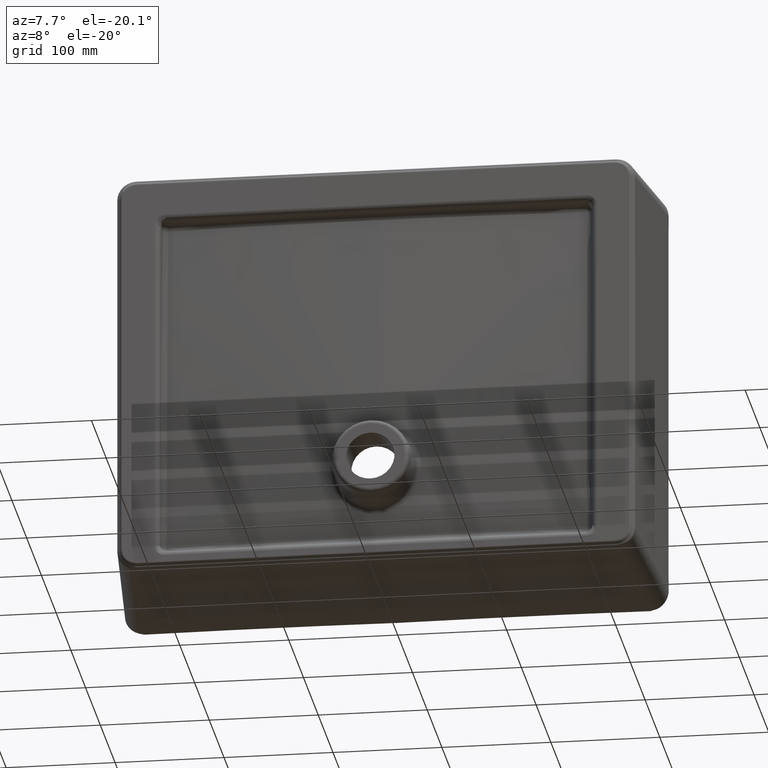
[diagram: clean part render]
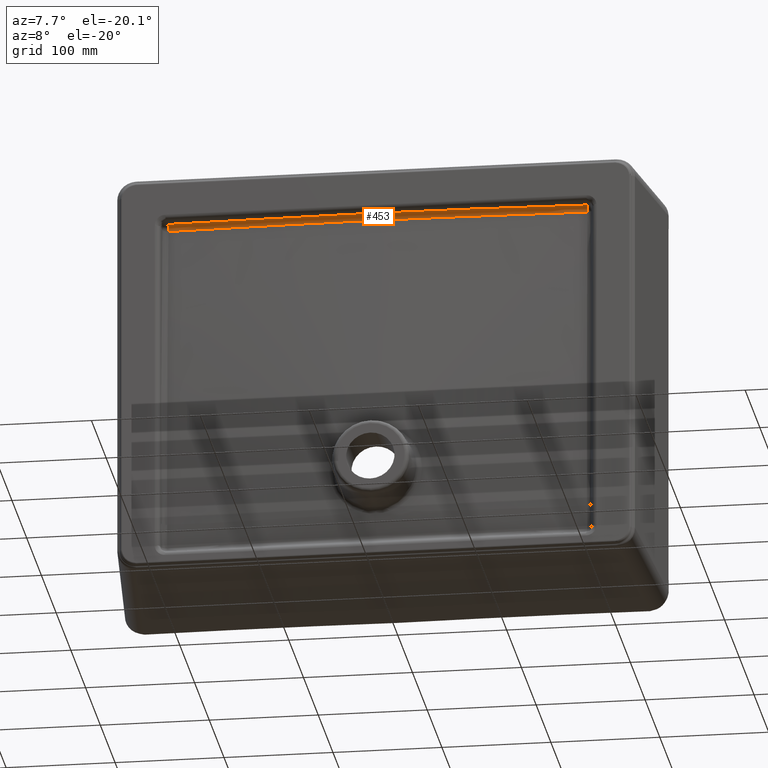
[diagram: same view with one face highlighted and labeled with its STEP entity id]
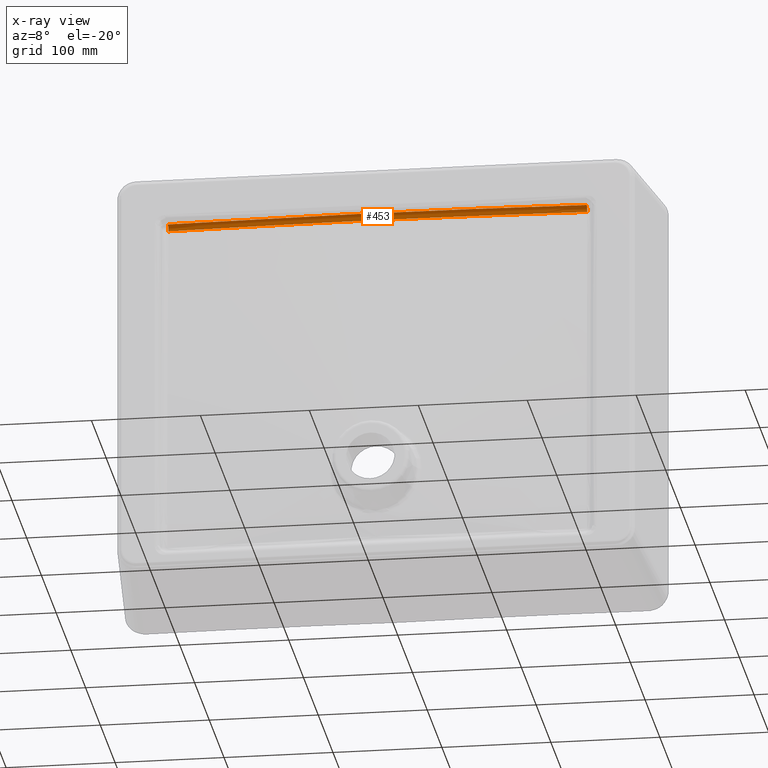
[diagram: x-ray of the same camera — body ghosted, the highlighted face saturated]
A machine part, auxiliary view. The second image highlights one B-rep face of the part: STEP entity #453.
The next image is the same camera in x-ray: the body ghosted, the highlighted face saturated — about 0% of this face is hidden behind the body in this view.
In plain terms, the highlighted face is a freeform B-spline surface patch.
Its self-contained STEP definition (entity closure, byte-faithful):
#149=(
BOUNDED_SURFACE()
B_SPLINE_SURFACE(3,2,((#6556,#6557,#6558),(#6559,#6560,#6561),(#6562,#6563,
#6564),(#6565,#6566,#6567),(#6568,#6569,#6570),(#6571,#6572,#6573)),
 .UNSPECIFIED.,.F.,.F.,.F.)
B_SPLINE_SURFACE_WITH_KNOTS((4,2,4),(3,3),(0.,0.5,1.),(0.,1.),
 .UNSPECIFIED.)
GEOMETRIC_REPRESENTATION_ITEM()
RATIONAL_B_SPLINE_SURFACE(((1.,0.723189178297716,1.),(1.,0.721388105028589,
1.),(1.,0.719339800338789,1.),(1.,0.719339800338789,1.),(1.,0.721388062574021,
1.),(1.,0.723189178297716,1.)))
REPRESENTATION_ITEM('')
SURFACE()
);
#342=CIRCLE('',#2165,5.);
#344=CIRCLE('',#2168,5.);
#453=ADVANCED_FACE('',(#597),#149,.T.);
#597=FACE_OUTER_BOUND('',#744,.T.);
#744=EDGE_LOOP('',(#1385,#1386,#1387,#1388));
#835=B_SPLINE_CURVE_WITH_KNOTS('',3,(#3064,#3065,#3066,#3067,#3068,#3069),
 .UNSPECIFIED.,.F.,.F.,(4,2,4),(0.,0.5,1.),.UNSPECIFIED.);
#857=B_SPLINE_CURVE_WITH_KNOTS('',3,(#3669,#3670,#3671,#3672,#3673,#3674),
 .UNSPECIFIED.,.F.,.F.,(4,2,4),(0.,0.5,1.),.UNSPECIFIED.);
#1385=ORIENTED_EDGE('',*,*,#2011,.T.);
#1386=ORIENTED_EDGE('',*,*,#1865,.F.);
#1387=ORIENTED_EDGE('',*,*,#2014,.F.);
#1388=ORIENTED_EDGE('',*,*,#1830,.F.);
#1654=VERTEX_POINT('',#3070);
#1655=VERTEX_POINT('',#3071);
#1687=VERTEX_POINT('',#3668);
#1688=VERTEX_POINT('',#3675);
#1830=EDGE_CURVE('',#1654,#1655,#835,.T.);
#1865=EDGE_CURVE('',#1687,#1688,#857,.T.);
#2011=EDGE_CURVE('',#1654,#1688,#342,.T.);
#2014=EDGE_CURVE('',#1655,#1687,#344,.T.);
#2165=AXIS2_PLACEMENT_3D('',#6522,#2367,#2368);
#2168=AXIS2_PLACEMENT_3D('',#6555,#2373,#2374);
#2367=DIRECTION('',(0.999477451375304,0.0322007387917334,-0.00281719960143612));
#2368=DIRECTION('',(-0.0322008665749052,0.999481417632075,0.));
#2373=DIRECTION('',(0.999477451375304,-0.0322007387917332,0.00281719960144167));
#2374=DIRECTION('',(0.0322008665749052,0.999481417632075,0.));
#3064=CARTESIAN_POINT('',(192.16031026311,-134.360231407309,342.115818564149));
#3065=CARTESIAN_POINT('',(128.12586089172,-136.424341576142,342.270233090471));
#3066=CARTESIAN_POINT('',(64.0699026513638,-137.824209578635,342.363137149872));
#3067=CARTESIAN_POINT('',(-64.067984950206,-137.824235729806,342.363138903755));
#3068=CARTESIAN_POINT('',(-128.125883139665,-136.424340858993,342.270233036822));
#3069=CARTESIAN_POINT('',(-192.16031026311,-134.360231407309,342.115818564149));
#3070=CARTESIAN_POINT('',(192.16031026311,-134.360231407309,342.115818564149));
#3071=CARTESIAN_POINT('',(-192.16031026311,-134.360231407309,342.115818564149));
#3668=CARTESIAN_POINT('',(-192.321757843368,-138.917600367344,347.302731333827));
#3669=CARTESIAN_POINT('',(-192.321757843368,-138.917600367344,347.302731333827));
#3670=CARTESIAN_POINT('',(-128.233551266613,-140.982366907869,347.48337499895));
#3671=CARTESIAN_POINT('',(-64.1218258548145,-142.381604696046,347.605792442993));
#3672=CARTESIAN_POINT('',(64.1237469462745,-142.381578532464,347.605790153976));
#3673=CARTESIAN_POINT('',(128.233528553634,-140.982367639626,347.483375062971));
#3674=CARTESIAN_POINT('',(192.321757843368,-138.917600367344,347.302731333827));
#3675=CARTESIAN_POINT('',(192.321757843368,-138.917600367344,347.302731333827));
#6522=CARTESIAN_POINT('',(192.321757843368,-139.353379081082,342.321757843368));
#6555=CARTESIAN_POINT('',(-192.321757843368,-139.353379081082,342.321757843368));
#6556=CARTESIAN_POINT('',(-192.16031026311,-134.360231407309,342.115818564149));
#6557=CARTESIAN_POINT('',(-192.167411015949,-134.163226569264,346.88677752433));
#6558=CARTESIAN_POINT('',(-192.321757843368,-138.917600367344,347.302731333827));
#6559=CARTESIAN_POINT('',(-128.104878685412,-136.425017924325,342.270283688298));
#6560=CARTESIAN_POINT('',(-127.949743712562,-136.207223841976,347.065604111464));
#6561=CARTESIAN_POINT('',(-128.236106904899,-140.982284568074,347.483367795152));
#6562=CARTESIAN_POINT('',(-64.0535127856341,-137.824235735916,342.363138905993));
#6563=CARTESIAN_POINT('',(-64.0558164796326,-137.571534239436,347.18496580936));
#6564=CARTESIAN_POINT('',(-64.1218258555845,-142.381604696558,347.605792443038));
#6565=CARTESIAN_POINT('',(64.0554318304329,-137.824209572524,342.363137147634));
#6566=CARTESIAN_POINT('',(64.0577355934501,-137.571508614382,347.184963563296));
#6567=CARTESIAN_POINT('',(64.1237469470445,-142.381578531952,347.605790153931));
#6568=CARTESIAN_POINT('',(128.101245442055,-136.425135039924,342.270292442653));
#6569=CARTESIAN_POINT('',(127.946097448395,-136.207339889185,347.065614272353));
#6570=CARTESIAN_POINT('',(128.232470261973,-140.982401732115,347.483378045677));
#6571=CARTESIAN_POINT('',(192.16031026311,-134.360231407309,342.115818564149));
#6572=CARTESIAN_POINT('',(192.167411015949,-134.163226569264,346.88677752433));
#6573=CARTESIAN_POINT('',(192.321757843368,-138.917600367344,347.302731333827));